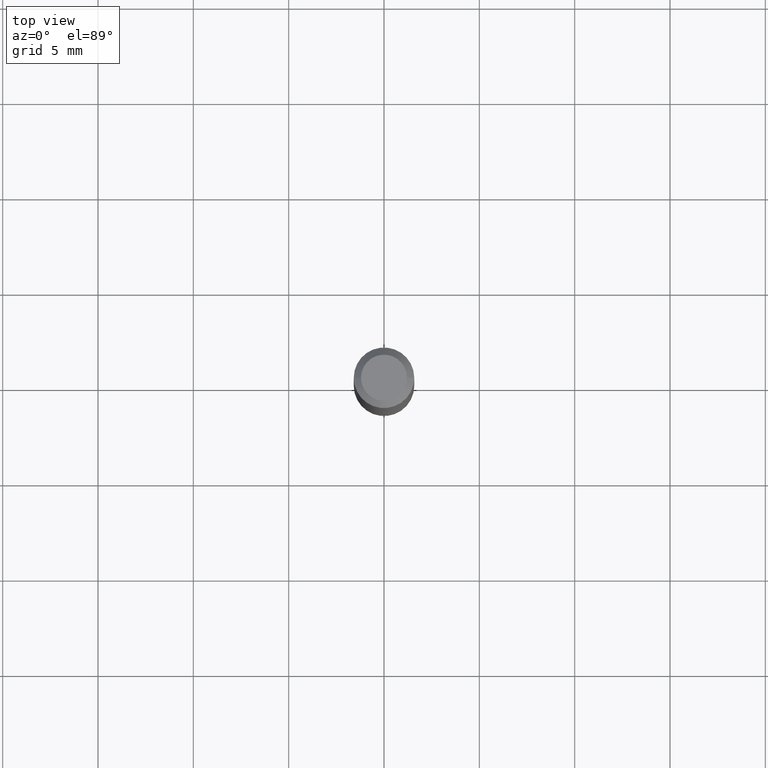
[diagram: clean part render]
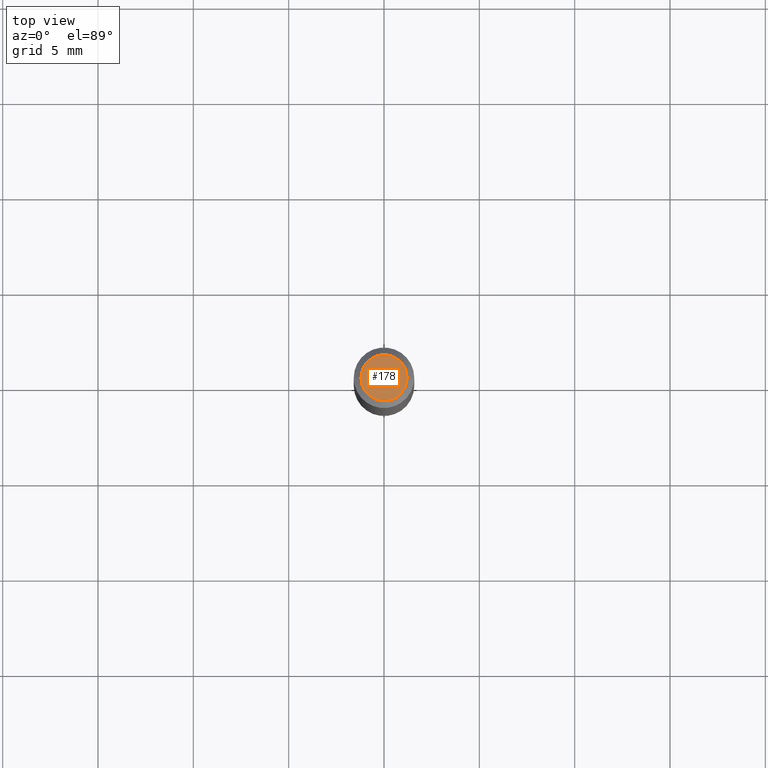
[diagram: same view with one face highlighted and labeled with its STEP entity id]
A machine part, top view. The second image highlights one B-rep face of the part: STEP entity #178.
In plain terms, the highlighted planar face has unit normal (0, -0, -1).
Its self-contained STEP definition (entity closure, byte-faithful):
#17 = DIRECTION ( 'NONE',  ( 1.000000000000000000, -6.982962677686267499E-15, 4.884662768193073002E-29 ) ) ;
#57 = CIRCLE ( 'NONE', #343, 0.04749999999999999362 ) ;
#64 = AXIS2_PLACEMENT_3D ( 'NONE', #120, #417, #236 ) ;
#65 = CIRCLE ( 'NONE', #268, 0.04749999999999999362 ) ;
#101 = ORIENTED_EDGE ( 'NONE', *, *, #135, .T. ) ;
#117 = EDGE_CURVE ( 'NONE', #256, #354, #65, .T. ) ;
#120 = CARTESIAN_POINT ( 'NONE',  ( 3.316907271900976096E-16, 0.04749999999999999362, -1.264584670729918775E-16 ) ) ;
#128 = DIRECTION ( 'NONE',  ( 1.000000000000000000, -6.982962677686267499E-15, 4.884662768193073002E-29 ) ) ;
#135 = EDGE_CURVE ( 'NONE', #354, #256, #57, .T. ) ;
#139 = EDGE_LOOP ( 'NONE', ( #316, #101 ) ) ;
#175 = PLANE ( 'NONE',  #64 ) ;
#178 = ADVANCED_FACE ( 'NONE', ( #418 ), #175, .F. ) ;
#205 = CARTESIAN_POINT ( 'NONE',  ( -1.926388536342670348E-45, 2.750372284034196662E-31, 7.877379304411503798E-17 ) ) ;
#228 = CARTESIAN_POINT ( 'NONE',  ( 0.04749999999999999362, -4.035134999187576651E-16, 7.877379304411762643E-17 ) ) ;
#230 = CARTESIAN_POINT ( 'NONE',  ( -0.04749999999999999362, 3.578768372314211492E-16, 7.877379304411263442E-17 ) ) ;
#236 = DIRECTION ( 'NONE',  ( -1.000000000000000000, 6.982962677686265922E-15, -4.876176775795935793E-29 ) ) ;
#256 = VERTEX_POINT ( 'NONE', #230 ) ;
#268 = AXIS2_PLACEMENT_3D ( 'NONE', #454, #422, #17 ) ;
#316 = ORIENTED_EDGE ( 'NONE', *, *, #117, .T. ) ;
#342 = DIRECTION ( 'NONE',  ( -2.445468806185136597E-29, 3.491481338843145583E-15, 1.000000000000000000 ) ) ;
#343 = AXIS2_PLACEMENT_3D ( 'NONE', #205, #342, #128 ) ;
#354 = VERTEX_POINT ( 'NONE', #228 ) ;
#417 = DIRECTION ( 'NONE',  ( 2.438088387897960049E-29, -3.491481338843145188E-15, -1.000000000000000000 ) ) ;
#418 = FACE_OUTER_BOUND ( 'NONE', #139, .T. ) ;
#422 = DIRECTION ( 'NONE',  ( -2.445468806185136597E-29, 3.491481338843145583E-15, 1.000000000000000000 ) ) ;
#454 = CARTESIAN_POINT ( 'NONE',  ( -1.926388536342670348E-45, 2.750372284034196662E-31, 7.877379304411503798E-17 ) ) ;